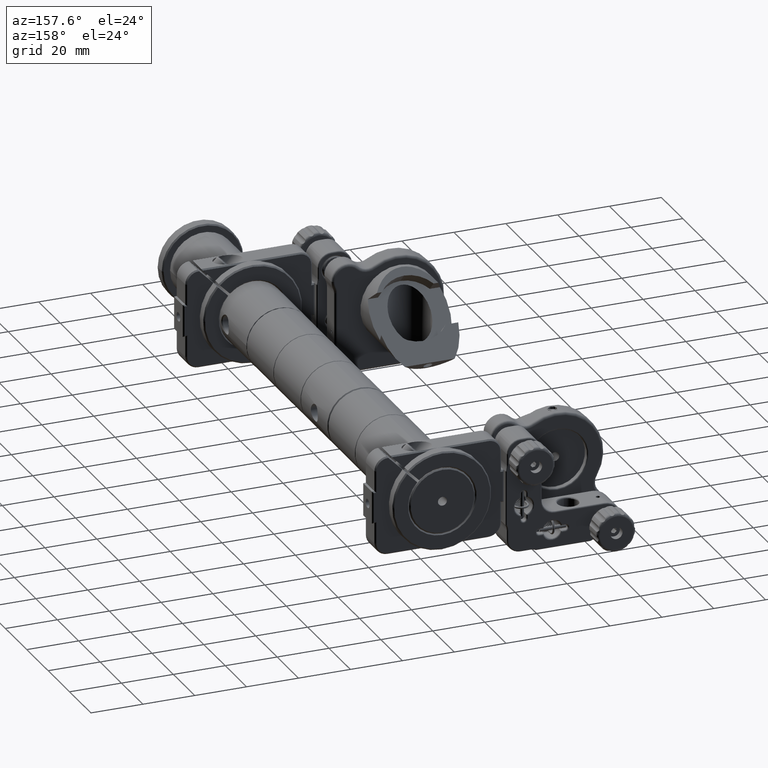
[diagram: clean part render]
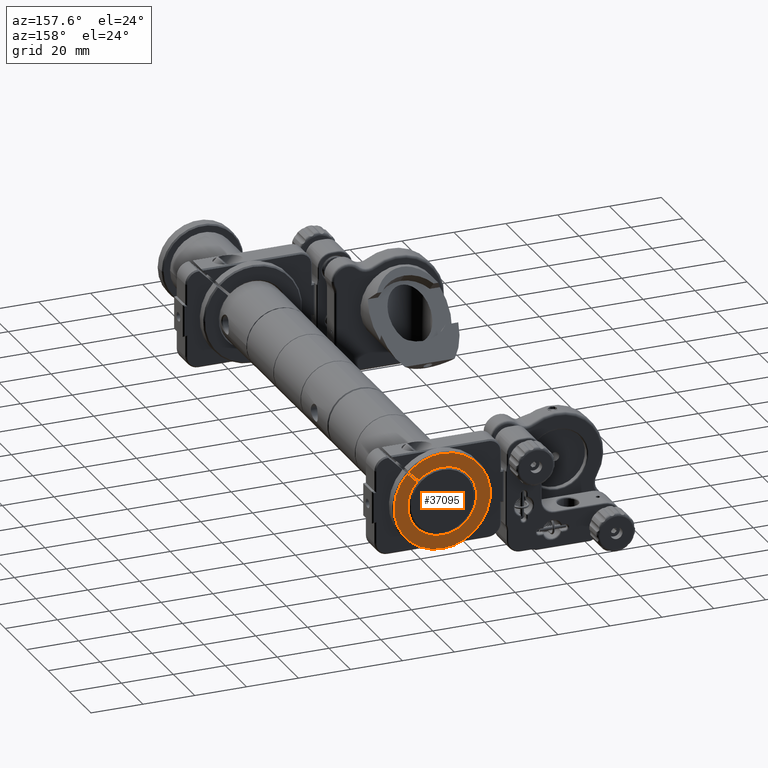
[diagram: same view with one face highlighted and labeled with its STEP entity id]
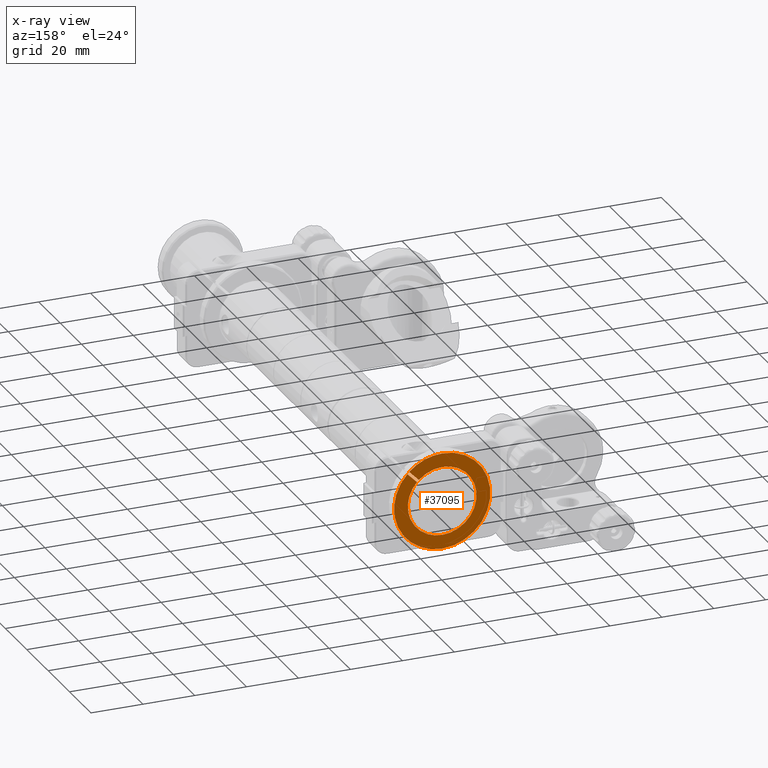
[diagram: x-ray of the same camera — body ghosted, the highlighted face saturated]
A machine part, auxiliary view. The second image highlights one B-rep face of the part: STEP entity #37095.
The next image is the same camera in x-ray: the body ghosted, the highlighted face saturated — about 0% of this face is hidden behind the body in this view.
In plain terms, the highlighted planar face has unit normal (0, 1, 0).
Its self-contained STEP definition (entity closure, byte-faithful):
#288 = CARTESIAN_POINT ( 'NONE',  ( 0.0000000000000000000, 20.28529747524592300, 0.0000000000000000000 ) ) ;
#311 = ORIENTED_EDGE ( 'NONE', *, *, #58504, .T. ) ;
#606 = DIRECTION ( 'NONE',  ( 0.0000000000000000000, 0.0000000000000000000, 1.000000000000000000 ) ) ;
#1290 = AXIS2_PLACEMENT_3D ( 'NONE', #51276, #10166, #37480 ) ;
#1931 = DIRECTION ( 'NONE',  ( 0.0000000000000000000, 0.0000000000000000000, 1.000000000000000000 ) ) ;
#2501 = CARTESIAN_POINT ( 'NONE',  ( 0.0000000000000000000, 20.28529747524592300, 0.0000000000000000000 ) ) ;
#3458 = LINE ( 'NONE', #47331, #28218 ) ;
#3540 = EDGE_CURVE ( 'NONE', #29901, #28444, #12867, .T. ) ;
#4080 = CARTESIAN_POINT ( 'NONE',  ( 1.622657008870242500E-015, 20.28529747524592300, -13.24999999999999600 ) ) ;
#4481 = CARTESIAN_POINT ( 'NONE',  ( 0.0000000000000000000, 20.28529747524592300, 13.24999999999999600 ) ) ;
#6782 = ORIENTED_EDGE ( 'NONE', *, *, #53086, .T. ) ;
#7226 = DIRECTION ( 'NONE',  ( 0.0000000000000000000, 0.0000000000000000000, 1.000000000000000000 ) ) ;
#7794 = ORIENTED_EDGE ( 'NONE', *, *, #54034, .T. ) ;
#8113 = DIRECTION ( 'NONE',  ( 0.0000000000000000000, 0.0000000000000000000, 1.000000000000000000 ) ) ;
#9715 = CARTESIAN_POINT ( 'NONE',  ( 9.008938264943708400, 20.28529747524592300, 9.716045046130290100 ) ) ;
#10166 = DIRECTION ( 'NONE',  ( 0.0000000000000000000, 1.000000000000000000, 0.0000000000000000000 ) ) ;
#10473 = AXIS2_PLACEMENT_3D ( 'NONE', #20273, #15521, #1931 ) ;
#10597 = ORIENTED_EDGE ( 'NONE', *, *, #38080, .T. ) ;
#11534 = VERTEX_POINT ( 'NONE', #4481 ) ;
#11935 = VERTEX_POINT ( 'NONE', #9715 ) ;
#12416 = CARTESIAN_POINT ( 'NONE',  ( 13.46561844534338800, 20.28529747524592300, 12.75851166415689000 ) ) ;
#12867 = CIRCLE ( 'NONE', #20199, 18.54999999999998600 ) ;
#12884 = EDGE_CURVE ( 'NONE', #22253, #24575, #27137, .T. ) ;
#13472 = CARTESIAN_POINT ( 'NONE',  ( 2.302335982397023500E-015, 20.28529747524592300, 18.54999999999998600 ) ) ;
#13858 = DIRECTION ( 'NONE',  ( -0.0000000000000000000, -1.000000000000000000, -0.0000000000000000000 ) ) ;
#14296 = PLANE ( 'NONE',  #1290 ) ;
#14434 = CARTESIAN_POINT ( 'NONE',  ( 0.0000000000000000000, 20.28529747524592300, 0.0000000000000000000 ) ) ;
#15034 = CARTESIAN_POINT ( 'NONE',  ( 0.0000000000000000000, 20.28529747524592300, -18.54999999999998600 ) ) ;
#15060 = VECTOR ( 'NONE', #55652, 1000.000000000000000 ) ;
#15521 = DIRECTION ( 'NONE',  ( -0.0000000000000000000, -1.000000000000000000, -0.0000000000000000000 ) ) ;
#18518 = ORIENTED_EDGE ( 'NONE', *, *, #39030, .T. ) ;
#18554 = CARTESIAN_POINT ( 'NONE',  ( 0.0000000000000000000, 20.28529747524592300, 0.0000000000000000000 ) ) ;
#18949 = AXIS2_PLACEMENT_3D ( 'NONE', #288, #40619, #45141 ) ;
#20199 = AXIS2_PLACEMENT_3D ( 'NONE', #2501, #56255, #7226 ) ;
#20273 = CARTESIAN_POINT ( 'NONE',  ( 0.0000000000000000000, 20.28529747524592300, 0.0000000000000000000 ) ) ;
#22253 = VERTEX_POINT ( 'NONE', #36347 ) ;
#23841 = CARTESIAN_POINT ( 'NONE',  ( 12.75851166415684000, 20.28529747524592300, 13.46561844534343800 ) ) ;
#24425 = CARTESIAN_POINT ( 'NONE',  ( 9.362229763956879200, 20.28529747524592300, 8.655122982770368600 ) ) ;
#24575 = VERTEX_POINT ( 'NONE', #12416 ) ;
#26112 = ORIENTED_EDGE ( 'NONE', *, *, #3540, .T. ) ;
#26993 = ORIENTED_EDGE ( 'NONE', *, *, #12884, .T. ) ;
#27137 = LINE ( 'NONE', #24425, #15060 ) ;
#28218 = VECTOR ( 'NONE', #52660, 1000.000000000000000 ) ;
#28444 = VERTEX_POINT ( 'NONE', #23841 ) ;
#29547 = CIRCLE ( 'NONE', #10473, 13.24999999999999600 ) ;
#29901 = VERTEX_POINT ( 'NONE', #13472 ) ;
#31658 = DIRECTION ( 'NONE',  ( 0.0000000000000000000, 1.000000000000000000, 0.0000000000000000000 ) ) ;
#32052 = EDGE_CURVE ( 'NONE', #33446, #29901, #35963, .T. ) ;
#33446 = VERTEX_POINT ( 'NONE', #15034 ) ;
#35025 = CIRCLE ( 'NONE', #51613, 13.24999999999999600 ) ;
#35030 = DIRECTION ( 'NONE',  ( -0.0000000000000000000, -1.000000000000000000, -0.0000000000000000000 ) ) ;
#35963 = CIRCLE ( 'NONE', #40852, 18.54999999999998600 ) ;
#36347 = CARTESIAN_POINT ( 'NONE',  ( 9.716045046130254500, 20.28529747524592300, 9.008938264943745700 ) ) ;
#36686 = CIRCLE ( 'NONE', #54391, 13.24999999999999600 ) ;
#37095 = ADVANCED_FACE ( 'NONE', ( #44575 ), #14296, .T. ) ;
#37480 = DIRECTION ( 'NONE',  ( 0.0000000000000000000, -0.0000000000000000000, 1.000000000000000000 ) ) ;
#38080 = EDGE_CURVE ( 'NONE', #11935, #11534, #36686, .T. ) ;
#39030 = EDGE_CURVE ( 'NONE', #11534, #49681, #29547, .T. ) ;
#40028 = ORIENTED_EDGE ( 'NONE', *, *, #32052, .T. ) ;
#40619 = DIRECTION ( 'NONE',  ( 0.0000000000000000000, 1.000000000000000000, 0.0000000000000000000 ) ) ;
#40754 = EDGE_LOOP ( 'NONE', ( #26993, #6782, #40028, #26112, #311, #10597, #18518, #7794 ) ) ;
#40852 = AXIS2_PLACEMENT_3D ( 'NONE', #18554, #31658, #606 ) ;
#44575 = FACE_OUTER_BOUND ( 'NONE', #40754, .T. ) ;
#45141 = DIRECTION ( 'NONE',  ( 0.0000000000000000000, 0.0000000000000000000, 1.000000000000000000 ) ) ;
#45717 = DIRECTION ( 'NONE',  ( 0.0000000000000000000, 0.0000000000000000000, 1.000000000000000000 ) ) ;
#47331 = CARTESIAN_POINT ( 'NONE',  ( 18.34289321881337300, 20.28529747524592300, 19.04999999999999000 ) ) ;
#49681 = VERTEX_POINT ( 'NONE', #4080 ) ;
#51276 = CARTESIAN_POINT ( 'NONE',  ( 19.39999999999999900, 20.28529747524592300, -14.04999999999998500 ) ) ;
#51613 = AXIS2_PLACEMENT_3D ( 'NONE', #14434, #13858, #45717 ) ;
#52068 = CIRCLE ( 'NONE', #18949, 18.54999999999998600 ) ;
#52660 = DIRECTION ( 'NONE',  ( -0.7071067811865462400, 0.0000000000000000000, -0.7071067811865489100 ) ) ;
#53005 = CARTESIAN_POINT ( 'NONE',  ( 0.0000000000000000000, 20.28529747524592300, 0.0000000000000000000 ) ) ;
#53086 = EDGE_CURVE ( 'NONE', #24575, #33446, #52068, .T. ) ;
#54034 = EDGE_CURVE ( 'NONE', #49681, #22253, #35025, .T. ) ;
#54391 = AXIS2_PLACEMENT_3D ( 'NONE', #53005, #35030, #8113 ) ;
#55652 = DIRECTION ( 'NONE',  ( 0.7071067811865463500, 0.0000000000000000000, 0.7071067811865487900 ) ) ;
#56255 = DIRECTION ( 'NONE',  ( 0.0000000000000000000, 1.000000000000000000, 0.0000000000000000000 ) ) ;
#58504 = EDGE_CURVE ( 'NONE', #28444, #11935, #3458, .T. ) ;